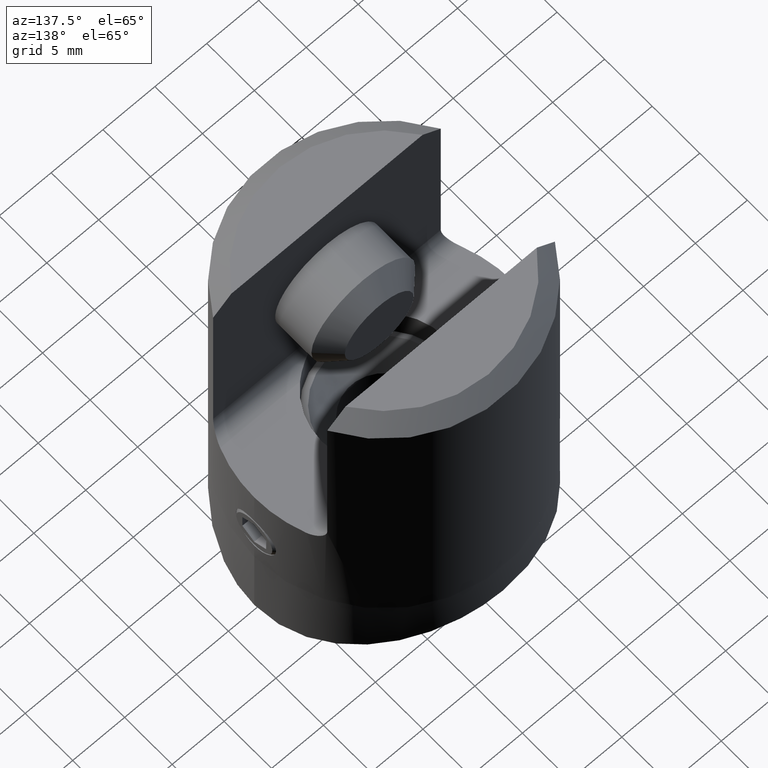
[diagram: clean part render]
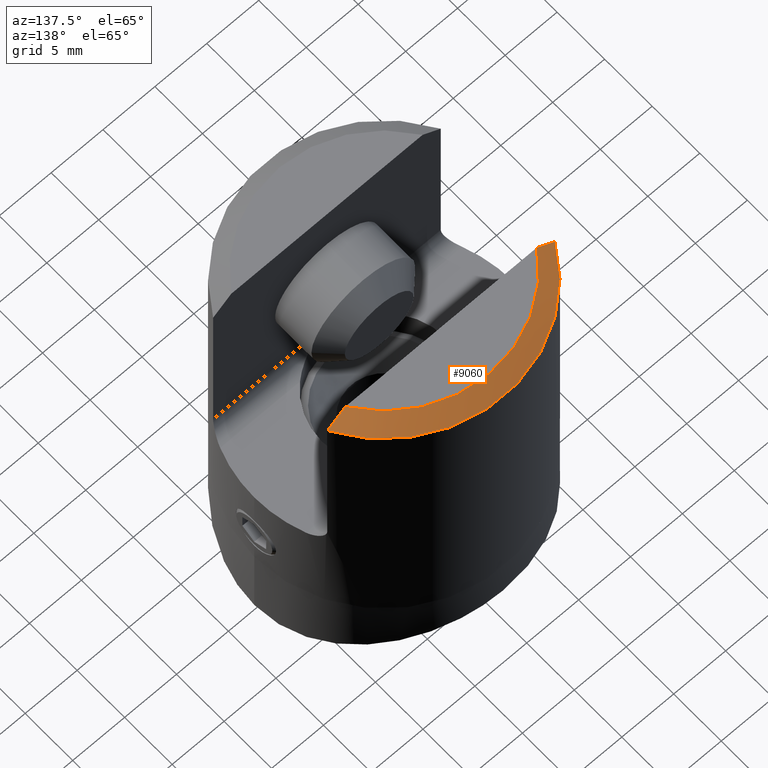
[diagram: same view with one face highlighted and labeled with its STEP entity id]
A machine part, auxiliary view. The second image highlights one B-rep face of the part: STEP entity #9060.
In plain terms, the highlighted conical surface has half-angle 45 deg.
Its self-contained STEP definition (entity closure, byte-faithful):
#8 = EDGE_CURVE ( 'NONE', #8074, #21050, #11149, .T. ) ;
#332 = CARTESIAN_POINT ( 'NONE',  ( 0.000000000000000000, 0.000000000000000000, 13.50000000000000711 ) ) ;
#340 = EDGE_CURVE ( 'NONE', #6711, #22535, #16848, .T. ) ;
#1580 = CARTESIAN_POINT ( 'NONE',  ( 9.219544457292899509, 6.000000000000000000, 15.00000000000000000 ) ) ;
#1604 = CIRCLE ( 'NONE', #32109, 12.50000000000000000 ) ;
#2346 = CARTESIAN_POINT ( 'NONE',  ( -9.219544457292899509, 6.000000000000000000, 15.00000000000000000 ) ) ;
#2695 = AXIS2_PLACEMENT_3D ( 'NONE', #16787, #19331, #24500 ) ;
#3821 = FACE_OUTER_BOUND ( 'NONE', #8979, .T. ) ;
#3965 = ORIENTED_EDGE ( 'NONE', *, *, #340, .F. ) ;
#4326 = EDGE_CURVE ( 'NONE', #22535, #8074, #1604, .T. ) ;
#4798 = CARTESIAN_POINT ( 'NONE',  ( -10.38914765861838596, 6.000000000000000000, 14.00592814213897874 ) ) ;
#5373 = DIRECTION ( 'NONE',  ( 0.000000000000000000, 0.000000000000000000, -1.000000000000000000 ) ) ;
#6342 = CARTESIAN_POINT ( 'NONE',  ( 9.807566054437094394, 6.000000000000000000, 14.50715534029824738 ) ) ;
#6711 = VERTEX_POINT ( 'NONE', #17319 ) ;
#7765 = ORIENTED_EDGE ( 'NONE', *, *, #8, .F. ) ;
#8061 = CARTESIAN_POINT ( 'NONE',  ( -10.96585609973065623, 6.000000000000000000, 13.50000000000000711 ) ) ;
#8074 = VERTEX_POINT ( 'NONE', #26008 ) ;
#8146 = CARTESIAN_POINT ( 'NONE',  ( -9.807903379770445795, 6.000000000000000000, 14.50687261430666375 ) ) ;
#8741 = ORIENTED_EDGE ( 'NONE', *, *, #4326, .F. ) ;
#8979 = EDGE_LOOP ( 'NONE', ( #7765, #8741, #3965, #14497 ) ) ;
#9060 = ADVANCED_FACE ( 'NONE', ( #3821 ), #10971, .T. ) ;
#9268 = EDGE_CURVE ( 'NONE', #21050, #6711, #26264, .T. ) ;
#10971 = CONICAL_SURFACE ( 'NONE', #2695, 11.00000000000001066, 0.7853981633974477239 ) ;
#11149 = B_SPLINE_CURVE_WITH_KNOTS ( 'NONE', 3,
 ( #18561, #31313, #6342, #26138 ),
 .UNSPECIFIED., .F., .F.,
 ( 4, 4 ),
 ( 0.01809640099093061047, 0.02039683557023025395 ),
 .UNSPECIFIED. ) ;
#12818 = AXIS2_PLACEMENT_3D ( 'NONE', #31056, #18514, #31153 ) ;
#14497 = ORIENTED_EDGE ( 'NONE', *, *, #9268, .F. ) ;
#16787 = CARTESIAN_POINT ( 'NONE',  ( 0.000000000000000000, 0.000000000000000000, 15.00000000000000000 ) ) ;
#16848 = B_SPLINE_CURVE_WITH_KNOTS ( 'NONE', 3,
 ( #2346, #8146, #4798, #21261 ),
 .UNSPECIFIED., .F., .F.,
 ( 4, 4 ),
 ( 0.04180594926930952804, 0.04412584257624781181 ),
 .UNSPECIFIED. ) ;
#17319 = CARTESIAN_POINT ( 'NONE',  ( -9.219544457292899509, 6.000000000000000000, 15.00000000000000000 ) ) ;
#17348 = DIRECTION ( 'NONE',  ( 1.000000000000000000, 0.000000000000000000, 0.000000000000000000 ) ) ;
#18514 = DIRECTION ( 'NONE',  ( 0.000000000000000000, 0.000000000000000000, 1.000000000000000000 ) ) ;
#18561 = CARTESIAN_POINT ( 'NONE',  ( 10.96585609973065623, 6.000000000000000000, 13.50000000000000533 ) ) ;
#19331 = DIRECTION ( 'NONE',  ( 0.000000000000000000, 0.000000000000000000, -1.000000000000000000 ) ) ;
#21050 = VERTEX_POINT ( 'NONE', #1580 ) ;
#21261 = CARTESIAN_POINT ( 'NONE',  ( -10.96585609973065623, 6.000000000000000000, 13.50000000000000711 ) ) ;
#22535 = VERTEX_POINT ( 'NONE', #8061 ) ;
#24500 = DIRECTION ( 'NONE',  ( -1.000000000000000000, 0.000000000000000000, 0.000000000000000000 ) ) ;
#26008 = CARTESIAN_POINT ( 'NONE',  ( 10.96585609973065623, 6.000000000000000000, 13.50000000000000533 ) ) ;
#26138 = CARTESIAN_POINT ( 'NONE',  ( 9.219544457292899509, 6.000000000000000000, 15.00000000000000000 ) ) ;
#26264 = CIRCLE ( 'NONE', #12818, 11.00000000000001066 ) ;
#31056 = CARTESIAN_POINT ( 'NONE',  ( 0.000000000000000000, 0.000000000000000000, 15.00000000000000000 ) ) ;
#31153 = DIRECTION ( 'NONE',  ( 1.000000000000000000, 0.000000000000000000, 0.000000000000000000 ) ) ;
#31313 = CARTESIAN_POINT ( 'NONE',  ( 10.38914799595922922, 6.000000000000000000, 14.00592784620048548 ) ) ;
#32109 = AXIS2_PLACEMENT_3D ( 'NONE', #332, #5373, #17348 ) ;